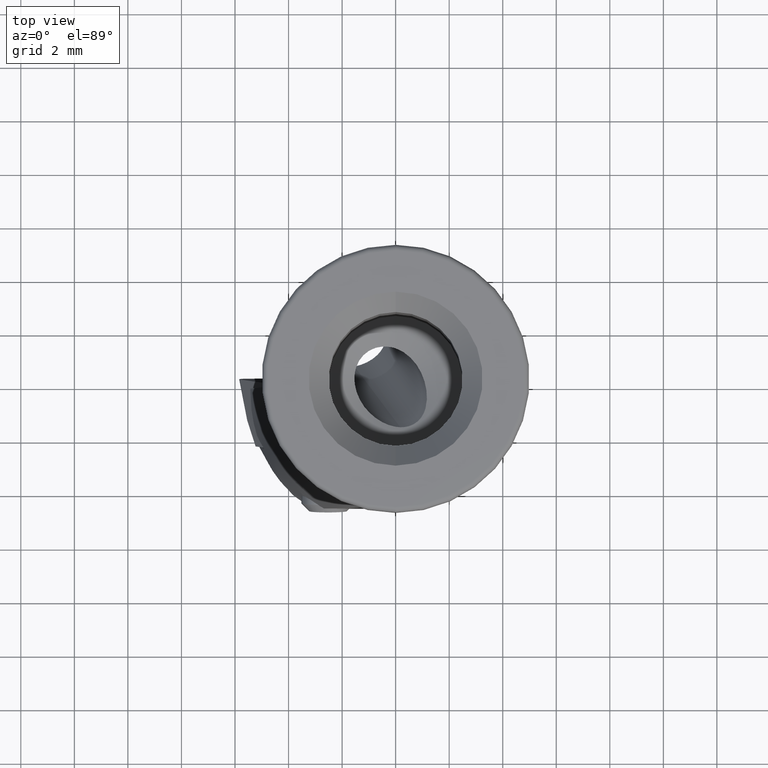
[diagram: clean part render]
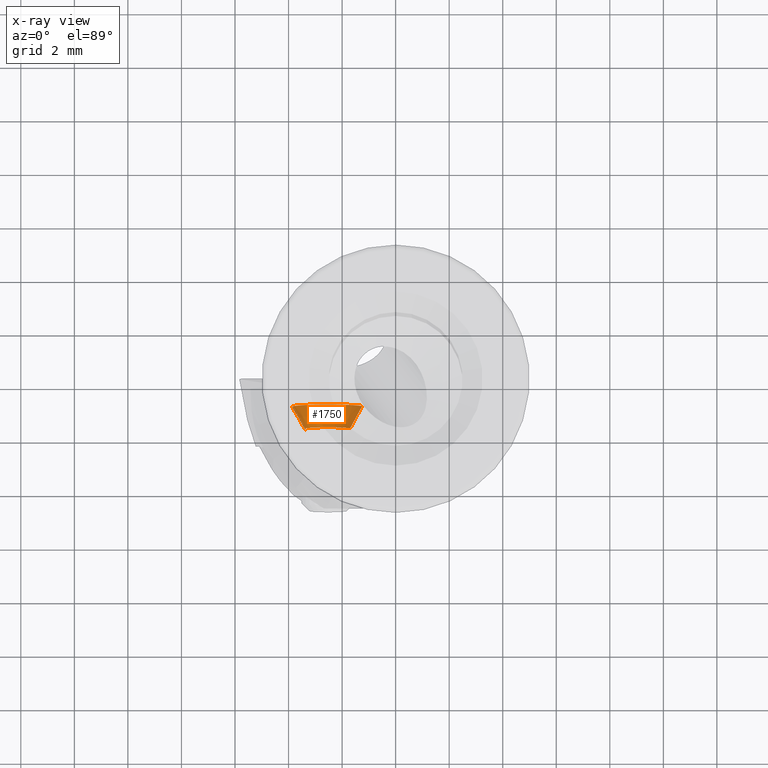
[diagram: x-ray — body ghosted, one internal face saturated and labeled with its STEP entity id]
A machine part, top view, then the same camera in x-ray: the body is ghosted and one INTERNAL B-rep face — a face not visible from any outside direction — is saturated and labeled: STEP entity #1750.
In plain terms, the highlighted conical surface has half-angle 30 deg.
Its self-contained STEP definition (entity closure, byte-faithful):
#822=VERTEX_POINT('NONE',#2095);
#1010=EDGE_CURVE('NONE',#1216,#1442,#2296,.T.);
#1136=EDGE_CURVE('NONE',#1442,#822,#2439,.T.);
#1170=EDGE_CURVE('NONE',#1640,#822,#2475,.T.);
#1216=VERTEX_POINT('NONE',#2524);
#1340=EDGE_CURVE('NONE',#1216,#1640,#2662,.T.);
#1442=VERTEX_POINT('NONE',#2773);
#1640=VERTEX_POINT('NONE',#2993);
#1750=ADVANCED_FACE('NONE',(#3118),#3119,.T.);
#2095=CARTESIAN_POINT('',(-3.80262273818436,-0.735079907327143,-20.3897772730924));
#2296=CIRCLE('',#4456,0.875438449807275);
#2439=LINE('',#4914,#4915);
#2475=CIRCLE('',#4995,1.35);
#2524=CARTESIAN_POINT('',(-1.6997242021821,-1.49044287875538,-21.1869264544375));
#2662=LINE('',#5324,#5325);
#2773=CARTESIAN_POINT('',(-3.35419209781789,-1.54038136250813,-20.616126973223));
#2993=CARTESIAN_POINT('',(-1.25129356181563,-0.658070549237994,-21.2699982638534));
#3118=FACE_OUTER_BOUND('',#6337,.T.);
#3119=CONICAL_SURFACE('',#6338,0.875438449807275,0.523598775598292);
#4456=AXIS2_PLACEMENT_3D('',#7027,#7028,#7029);
#4914=CARTESIAN_POINT('',(-3.35419209781789,-1.54038136250813,-20.616126973223));
#4915=VECTOR('',#7208,1000.0);
#4995=AXIS2_PLACEMENT_3D('',#7238,#7239,#7240);
#5324=CARTESIAN_POINT('',(-1.6997242021821,-1.49044287875538,-21.1869264544375));
#5325=VECTOR('',#7469,1000.0);
#6337=EDGE_LOOP('',(#8034,#8035,#8036,#8037));
#6338=AXIS2_PLACEMENT_3D('',#8038,#8039,#8040);
#7027=CARTESIAN_POINT('',(-2.52695815,-1.51541212063175,-20.9015267138302));
#7028=DIRECTION('',(1.35809538005857E-017,0.996194698091746,0.0871557427476582));
#7029=DIRECTION('',(0.944936731988418,0.0285219844774625,-0.326007774355943));
#7208=DIRECTION('',(-0.472468365994204,0.848468923424093,0.238482974483143));
#7238=CARTESIAN_POINT('',(-2.52695815,-0.696575228282568,-20.8298877684729));
#7239=DIRECTION('',(1.52293967712641E-017,0.996194698091746,0.0871557427476582));
#7240=DIRECTION('',(0.944936731988418,0.0285219844774625,-0.326007774355943));
#7469=DIRECTION('',(0.472468365994204,0.876990907901555,-0.0875247998727962));
#8034=ORIENTED_EDGE('',*,*,#1010,.T.);
#8035=ORIENTED_EDGE('',*,*,#1136,.T.);
#8036=ORIENTED_EDGE('',*,*,#1170,.F.);
#8037=ORIENTED_EDGE('',*,*,#1340,.F.);
#8038=CARTESIAN_POINT('',(-2.52695815,-1.51541212063175,-20.9015267138302));
#8039=DIRECTION('',(1.35809538005857E-017,0.996194698091746,0.0871557427476582));
#8040=DIRECTION('',(0.944936731988418,0.0285219844774625,-0.326007774355943));